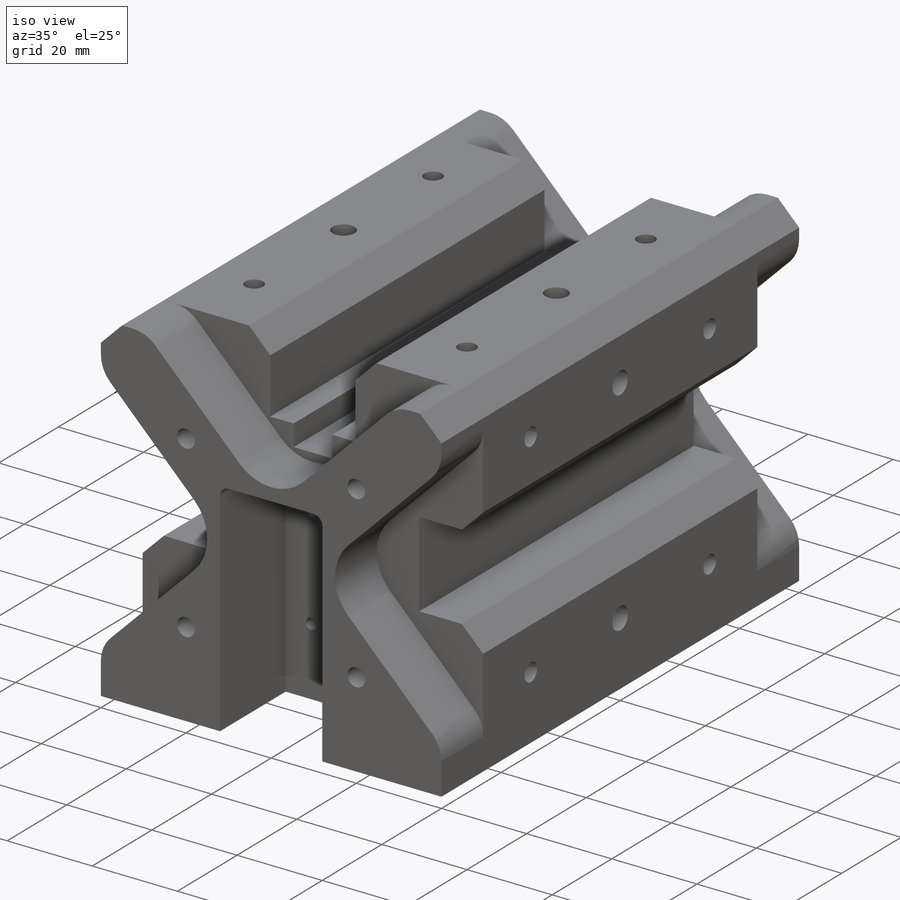
[diagram: iso view]
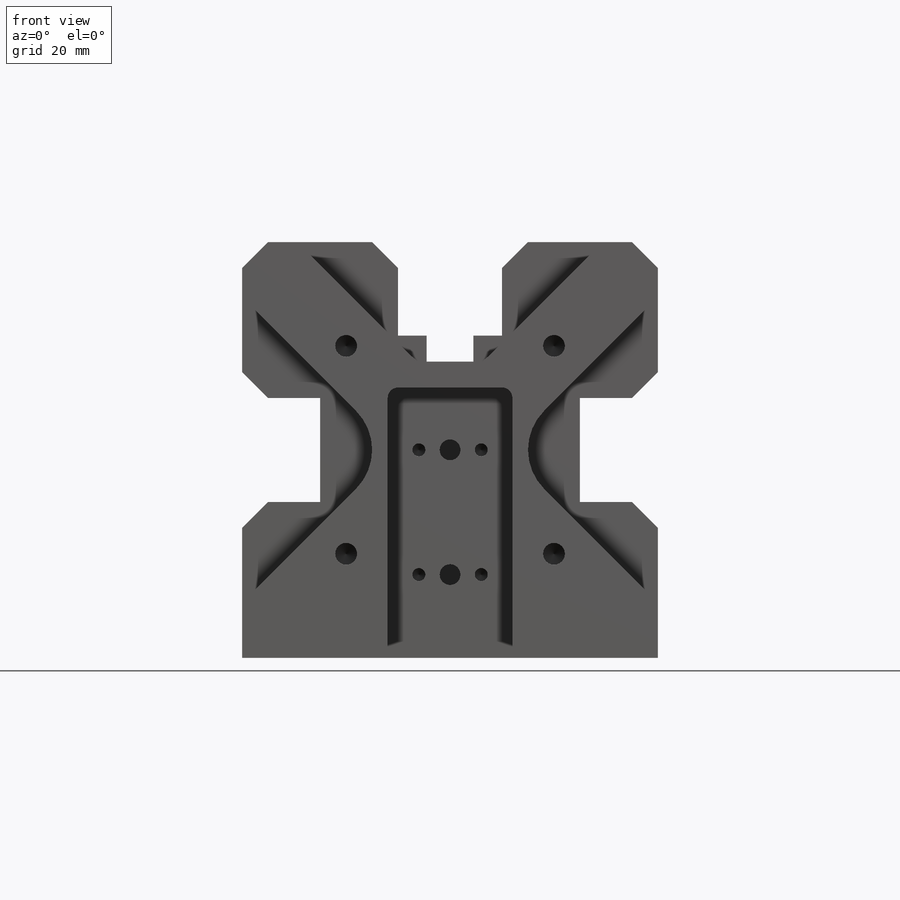
[diagram: front view]
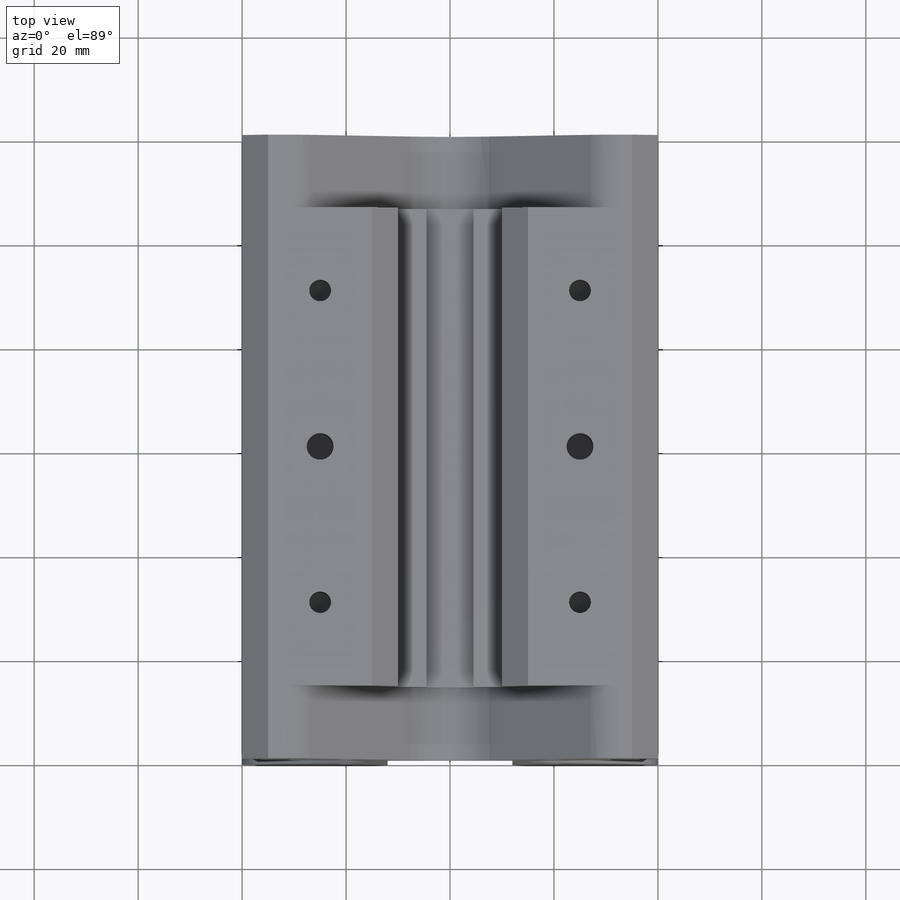
[diagram: top view]
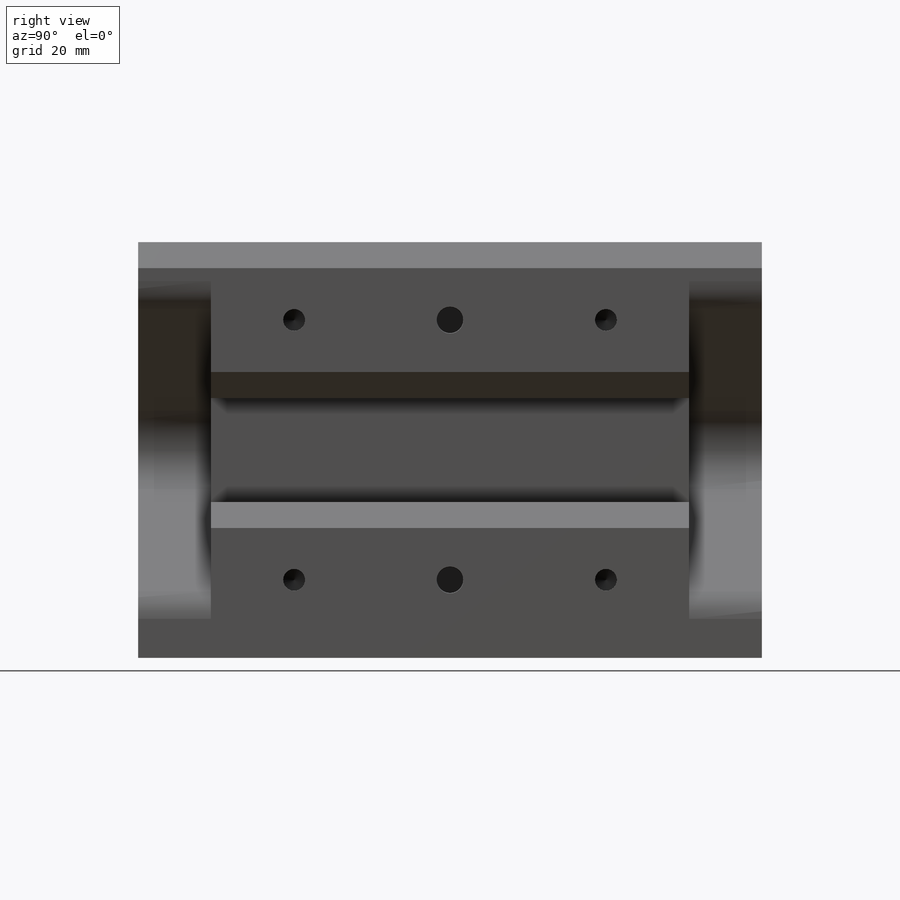
[diagram: right view]
SOLIDWORKS PART (.sldprt)
format: sldprt  version: not decoded by parser v0  size: 1,647,104 bytes
history: native  units: mm
features: sketch x38, thread x33, cut_extrude x11, hole x8, plane x4, material x1, extrude x1, chamfer x1 (+10 scaffold rows collapsed)
feature tree (107):
  scaffold x10  (default folders/planes/origin — collapsed)
  material  "6061 Сплав"
  plane  "Спереди"
  plane  "Сверху"
  plane  "Справа"
  sketch  "Эскиз7"  dims[D1=80.0mm]
  extrude  "Бобышка-Вытянуть2"  Depth=120mm
  sketch  "Эскиз8"  dims[D3=2.0mm D4=2.0mm D1=12.0mm D2=24.0mm D5=24.0mm D6=8.0mm]
  cut_extrude  "Вырез-Вытянуть2"  Depth=22mm
  plane  "Плоскость6"  Offset=0mm
  sketch  "Эскиз10"  dims[D1=9.0mm D2=8.0mm D3=6.5mm D4=7.5mm D5=8.0mm D6=9.0mm D7=6.5mm D8=7.5mm D9=3.5mm D10=8.0mm]
  sketch  "Sketch4"  dims[c1.D1=2.0mm c1.D4=2.5mm c2.D1=24.1mm c2.D2=24.0mm c2.D3=12.0mm c2.D4=24.0mm]
  cut_extrude  "Cut-Extrude6"  Depth=22mm
  sketch  "Sketch5"  dims[D1=2.1mm]
  cut_extrude  "Cut-Extrude8"  Depth=10mm
  cut_extrude  "Cut-Extrude9"  Depth=10mm
  sketch  "Sketch12"  dims[D1=22.0mm]
  sketch  "Sketch16"  dims[D1=23.1mm]
  hole  "M3x0.5 Tapped Hole1"  Diameter=2.5mm Depth=7.5mm
  sketch  "Sketch18"  dims[D1=40.894mm]
  sketch  "Sketch17"  dims[hole-wizard template sketch: 50 standard entries collapsed; hole parameters above]
  thread  "Hole Thread1"  Diameter=5mm  [1 undecoded]
  thread  "Hole Thread2"  Diameter=5mm  [1 undecoded]
  thread  "Hole Thread4"  Diameter=5mm  [1 undecoded]
  thread  "Hole Thread5"  Diameter=5mm  [1 undecoded]
  thread  "Hole Thread6"  Diameter=5mm  [1 undecoded]
  sketch  "Sketch19"  dims[D1=40.0mm]
  sketch  "Sketch28"  dims[D1=40.0mm]
  hole  "M5x0.8 Tapped Hole2"  Diameter=4.2mm Depth=19mm
  sketch  "Sketch32"
  sketch  "Sketch31"  dims[hole-wizard template sketch: 47 standard entries collapsed; hole parameters kept: c15.Tap Drill Depth=19.0mm c15.D3=~14.816244mm c15.Drill Angle=118.0deg]
  thread  "Hole Thread15"  Diameter=15mm  [1 undecoded]
  thread  "Hole Thread16"  Diameter=15mm  [1 undecoded]
  thread  "Hole Thread17"  Diameter=15mm  [1 undecoded]
  thread  "Hole Thread18"  Diameter=15mm  [1 undecoded]
  sketch  "Sketch38"  dims[c1.D1=13.5mm c1.D2=17.5mm c2.D1=50.0mm]
  hole  "M5x0.8 Tapped Hole5"  Diameter=4.2mm Depth=12.4mm
  sketch  "Sketch44"
  sketch  "Sketch43"  dims[hole-wizard template sketch: 47 standard entries collapsed; hole parameters kept: c15.Tap Drill Depth=12.4mm c15.D3=~14.816244mm c15.Drill Angle=118.0deg]
  thread  "Hole Thread23"  Diameter=10mm  [1 undecoded]
  thread  "Hole Thread24"  Diameter=10mm  [1 undecoded]
  thread  "Hole Thread25"  Diameter=10mm  [1 undecoded]
  thread  "Hole Thread26"  Diameter=10mm  [1 undecoded]
  sketch  "Sketch45"  dims[D1=50.0mm]
  hole  "M5x0.8 Tapped Hole3"  Diameter=4.2mm Depth=12.4mm
  sketch  "Sketch47"
  sketch  "Sketch46"  dims[hole-wizard template sketch: 47 standard entries collapsed; hole parameters kept: c15.Tap Drill Depth=12.4mm c15.D3=~14.816244mm c15.Drill Angle=118.0deg]
  thread  "Hole Thread27"  Diameter=10mm  [1 undecoded]
  thread  "Hole Thread28"  Diameter=10mm  [1 undecoded]
  thread  "Hole Thread29"  Diameter=10mm  [1 undecoded]
  thread  "Hole Thread30"  Diameter=10mm  [1 undecoded]
  sketch  "Sketch48"
  hole  "M5x0.8 Tapped Hole4"  Diameter=4.2mm Depth=12.4mm
  sketch  "Sketch50"
  sketch  "Sketch49"  dims[hole-wizard template sketch: 47 standard entries collapsed; hole parameters kept: c15.Tap Drill Depth=12.4mm c15.D3=~14.816244mm c15.Drill Angle=118.0deg]
  thread  "Hole Thread31"  Diameter=10mm  [1 undecoded]
  thread  "Hole Thread32"  Diameter=10mm  [1 undecoded]
  thread  "Hole Thread33"  Diameter=10mm  [1 undecoded]
  thread  "Hole Thread34"  Diameter=10mm  [1 undecoded]
  sketch  "Sketch51"
  hole  "M3x0.5 Tapped Hole4"  Diameter=2.5mm Depth=5.5mm
  sketch  "Sketch53"
  sketch  "Sketch52"  dims[hole-wizard template sketch: 47 standard entries collapsed; hole parameters kept: c15.Tap Drill Depth=5.5mm c15.D3=~14.816244mm c15.Drill Angle=118.0deg]
  thread  "Hole Thread35"  Diameter=4mm  [1 undecoded]
  thread  "Hole Thread36"  Diameter=4mm  [1 undecoded]
  thread  "Hole Thread37"  Diameter=4mm  [1 undecoded]
  thread  "Hole Thread38"  Diameter=4mm  [1 undecoded]
  sketch  "Sketch54"  dims[D1=6.0mm]
  hole  "M3x0.5 Tapped Hole5"  Diameter=2.5mm Depth=5.5mm
  sketch  "Sketch56"
  sketch  "Sketch55"  dims[hole-wizard template sketch: 47 standard entries collapsed; hole parameters kept: c15.Tap Drill Depth=5.5mm c15.D3=~14.816244mm c15.Drill Angle=118.0deg]
  thread  "Hole Thread39"  Diameter=4mm  [1 undecoded]
  thread  "Hole Thread40"  Diameter=4mm  [1 undecoded]
  thread  "Hole Thread41"  Diameter=4mm  [1 undecoded]
  thread  "Hole Thread42"  Diameter=4mm  [1 undecoded]
  sketch  "Sketch33"  dims[c1.D1=~2.420869mm c1.D5=1.55mm c1.D3=1.5mm c2.D1=24.0mm c2.D2=24.0mm c2.D3=24.0mm c2.D4=24.0mm]
  sketch  "Sketch34"  dims[D1=24.0mm D2=24.0mm D3=24.0mm D4=24.0mm]
  sketch  "Sketch35"  dims[c1.D5=1.55mm c1.D3=1.5mm c1.D1=24.0mm c1.D2=24.0mm c2.D3=24.0mm c2.D4=24.0mm]
  hole  "M5x0.8 Tapped Hole1"  Diameter=4.2mm Depth=19mm
  sketch  "Sketch60"
  sketch  "Sketch59"  dims[hole-wizard template sketch: 47 standard entries collapsed; hole parameters kept: c15.Tap Drill Depth=19.0mm c15.D3=~14.816244mm c15.Drill Angle=118.0deg]
  thread  "Hole Thread43"  Diameter=15mm  [1 undecoded]
  thread  "Hole Thread44"  Diameter=15mm  [1 undecoded]
  thread  "Hole Thread45"  Diameter=15mm  [1 undecoded]
  thread  "Hole Thread46"  Diameter=15mm  [1 undecoded]
  cut_extrude  "Cut-Extrude16"  Depth=11mm
  cut_extrude  "Cut-Extrude17"  Depth=11mm
  cut_extrude  "Cut-Extrude18"  Depth=11mm
  sketch  "Sketch63"  dims[c1.D1=30.0mm c1.D2=30.0mm c1.D3=30.0mm c1.D4=30.0mm c1.D5=~11.206528mm c2.D1=18.0mm]
  cut_extrude  "Cut-Extrude19"  [1 undecoded]
  sketch  "Sketch64"  dims[c1.D2=5.0mm c1.D3=5.0mm c1.D4=30.0mm c1.D1=80.0mm c2.D2=65.0mm c2.D3=7.5mm c2.D5=~19.696699mm c3.D5=45.0deg c4.D5=~27.855339mm]
  sketch  "Sketch65"  dims[D2=5.0mm D3=5.0mm D7=30.0mm D1=10.0mm D4=80.0mm D5=65.0mm D6=7.5mm]
  sketch  "Sketch66"  dims[c1.D1=15.0mm c1.D2=15.0mm c1.D3=15.0mm c1.D4=15.0mm c1.D5=30.0mm c1.D6=30.0mm c1.D7=90.0mm c2.D1=6.0mm c2.D2=6.0mm c2.D3=6.0mm c2.D4=6.0mm c2.D5=6.0mm]
  chamfer  "Chamfer1"  Distance=5mm Angle=45deg
  sketch  "Эскиз11"  dims[D1=9.0mm]
  cut_extrude  "Вырез-Вытянуть3"  [1 undecoded]
  cut_extrude  "Вырез-Вытянуть4"  Depth=14mm
  cut_extrude  "Вырез-Вытянуть6"  Depth=14mm
decode coverage: 81 of 92 modeling features carry decoded parameters
note: ~ marks probable driven/reference dimensions
note: 35 parameter values undecoded
summary: Diameter pulled from absorbed wizard sketch
note: suppression state not decoded; provenance and decode notes live in map.json
